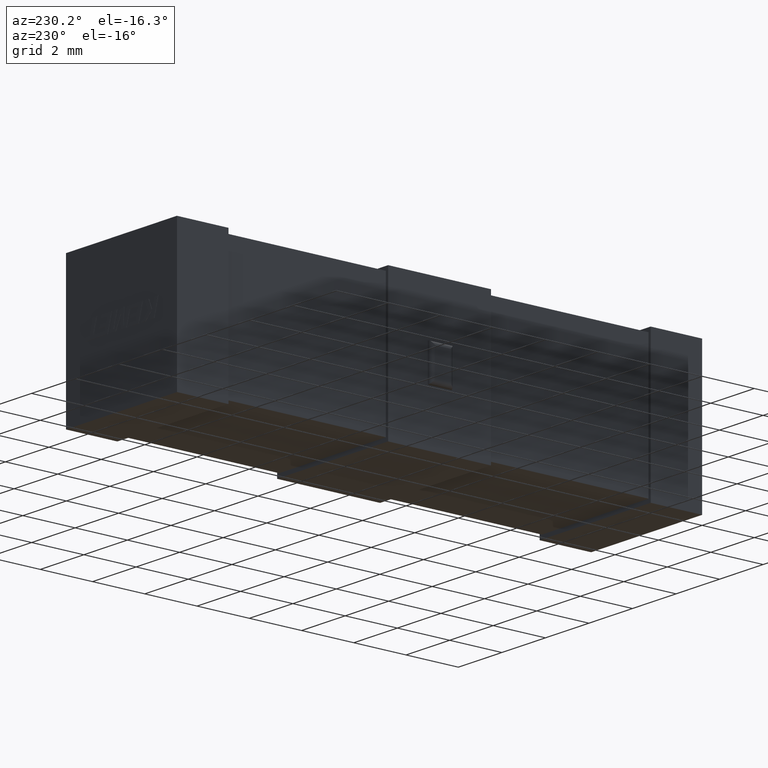
[diagram: clean part render]
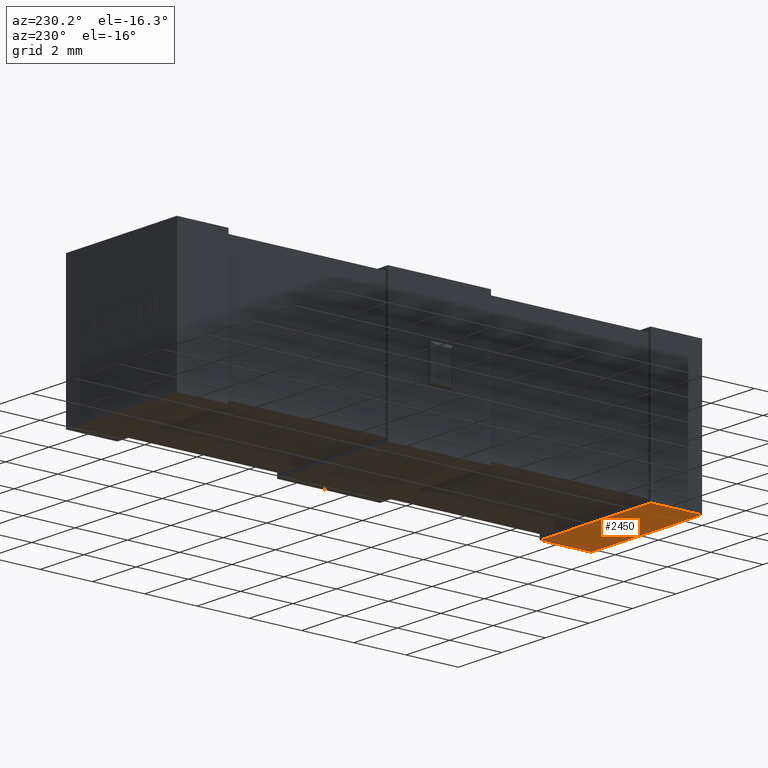
[diagram: same view with one face highlighted and labeled with its STEP entity id]
A machine part, auxiliary view. The second image highlights one B-rep face of the part: STEP entity #2450.
In plain terms, the highlighted planar face has unit normal (0, 0, -1).
Its self-contained STEP definition (entity closure, byte-faithful):
#15 = VECTOR ( 'NONE', #2165, 1000.000000000000000 ) ;
#68 = EDGE_CURVE ( 'NONE', #1813, #1969, #1889, .T. ) ;
#93 = EDGE_CURVE ( 'NONE', #1382, #1813, #1809, .T. ) ;
#105 = DIRECTION ( 'NONE',  ( 0.0000000000000000000, 0.0000000000000000000, -1.000000000000000000 ) ) ;
#208 = DIRECTION ( 'NONE',  ( 1.000000000000000000, 0.0000000000000000000, 0.0000000000000000000 ) ) ;
#223 = CARTESIAN_POINT ( 'NONE',  ( 5.100000000000000500, 0.0000000000000000000, 0.0000000000000000000 ) ) ;
#248 = CARTESIAN_POINT ( 'NONE',  ( 0.0000000000000000000, 0.0000000000000000000, 0.0000000000000000000 ) ) ;
#278 = AXIS2_PLACEMENT_3D ( 'NONE', #634, #105, #1921 ) ;
#333 = EDGE_CURVE ( 'NONE', #1340, #1969, #1435, .T. ) ;
#338 = CARTESIAN_POINT ( 'NONE',  ( 5.099999999999999600, 1.969800000000000700, 1.734723475976807100E-015 ) ) ;
#432 = EDGE_LOOP ( 'NONE', ( #3100, #1578, #2850, #2801 ) ) ;
#587 = VECTOR ( 'NONE', #3083, 1000.000000000000000 ) ;
#634 = CARTESIAN_POINT ( 'NONE',  ( 0.0000000000000000000, 0.0000000000000000000, 0.0000000000000000000 ) ) ;
#1006 = VECTOR ( 'NONE', #208, 1000.000000000000000 ) ;
#1170 = PLANE ( 'NONE',  #278 ) ;
#1340 = VERTEX_POINT ( 'NONE', #1381 ) ;
#1381 = CARTESIAN_POINT ( 'NONE',  ( 2.220309139790134300E-015, 1.969800000000000700, 1.734723475976807100E-015 ) ) ;
#1382 = VERTEX_POINT ( 'NONE', #2418 ) ;
#1435 = LINE ( 'NONE', #2408, #15 ) ;
#1578 = ORIENTED_EDGE ( 'NONE', *, *, #333, .T. ) ;
#1764 = CARTESIAN_POINT ( 'NONE',  ( 0.0000000000000000000, 0.0000000000000000000, 0.0000000000000000000 ) ) ;
#1809 = LINE ( 'NONE', #1764, #1006 ) ;
#1813 = VERTEX_POINT ( 'NONE', #223 ) ;
#1814 = EDGE_CURVE ( 'NONE', #1340, #1382, #1868, .T. ) ;
#1868 = LINE ( 'NONE', #248, #2281 ) ;
#1889 = LINE ( 'NONE', #3329, #587 ) ;
#1902 = FACE_OUTER_BOUND ( 'NONE', #432, .T. ) ;
#1921 = DIRECTION ( 'NONE',  ( -1.000000000000000000, 0.0000000000000000000, -0.0000000000000000000 ) ) ;
#1969 = VERTEX_POINT ( 'NONE', #338 ) ;
#2165 = DIRECTION ( 'NONE',  ( 1.000000000000000000, 0.0000000000000000000, 0.0000000000000000000 ) ) ;
#2281 = VECTOR ( 'NONE', #2573, 1000.000000000000000 ) ;
#2408 = CARTESIAN_POINT ( 'NONE',  ( 2.220309139790134300E-015, 1.969800000000000700, 1.734723475976807100E-015 ) ) ;
#2418 = CARTESIAN_POINT ( 'NONE',  ( 0.0000000000000000000, 0.0000000000000000000, 0.0000000000000000000 ) ) ;
#2450 = ADVANCED_FACE ( 'NONE', ( #1902 ), #1170, .T. ) ;
#2573 = DIRECTION ( 'NONE',  ( -0.0000000000000000000, -1.000000000000000000, -0.0000000000000000000 ) ) ;
#2801 = ORIENTED_EDGE ( 'NONE', *, *, #93, .F. ) ;
#2850 = ORIENTED_EDGE ( 'NONE', *, *, #68, .F. ) ;
#3083 = DIRECTION ( 'NONE',  ( -4.315232527305490500E-017, 1.000000000000000000, 0.0000000000000000000 ) ) ;
#3100 = ORIENTED_EDGE ( 'NONE', *, *, #1814, .F. ) ;
#3329 = CARTESIAN_POINT ( 'NONE',  ( 5.100000000000000500, 0.0000000000000000000, 0.0000000000000000000 ) ) ;